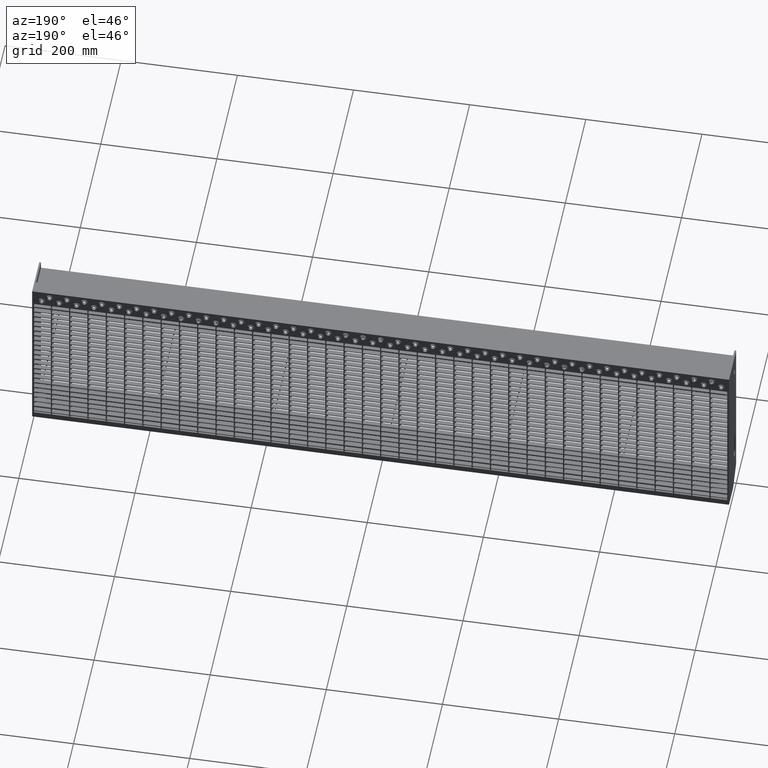
[diagram: clean part render]
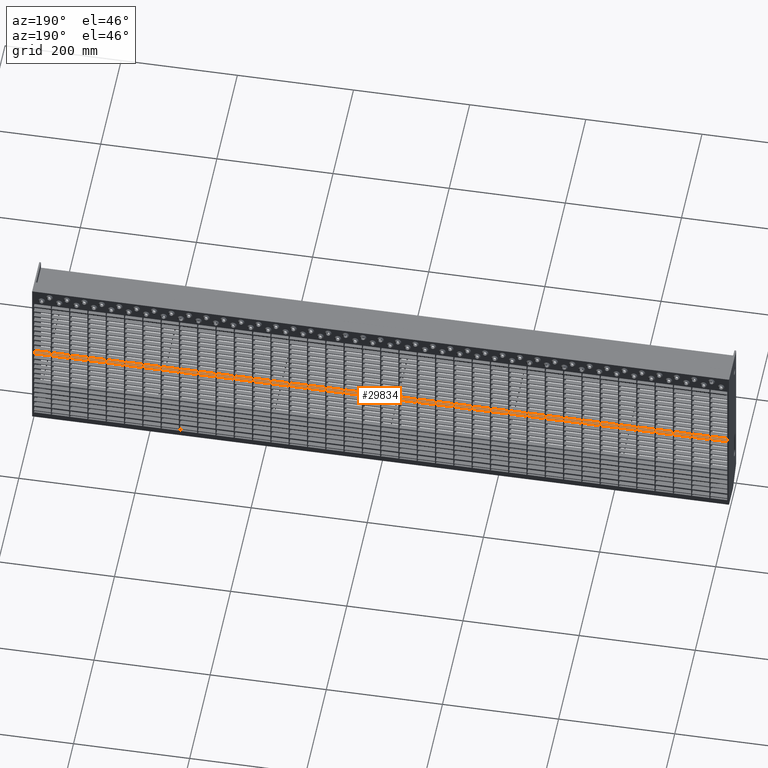
[diagram: same view with one face highlighted and labeled with its STEP entity id]
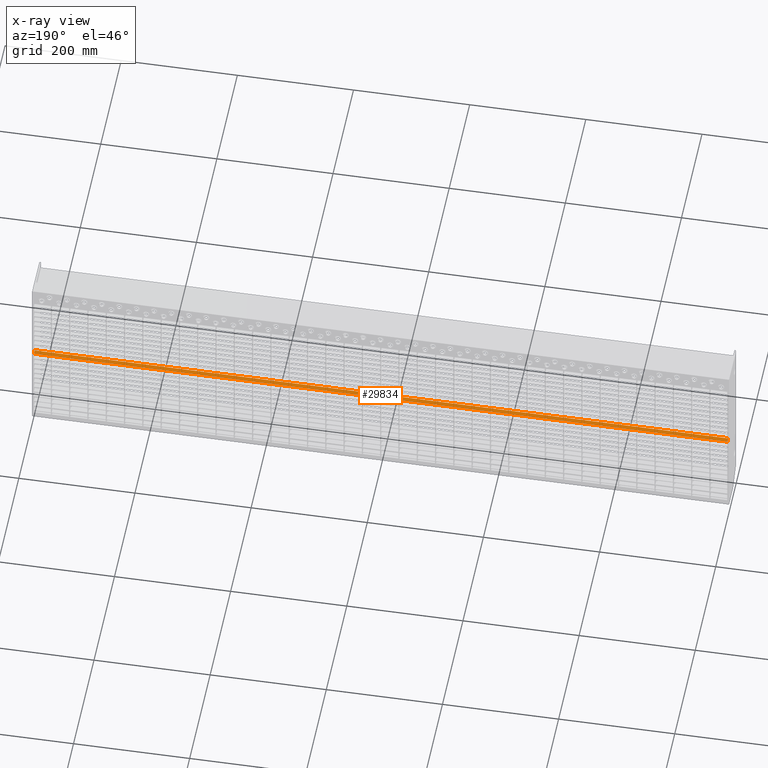
[diagram: x-ray of the same camera — body ghosted, the highlighted face saturated]
A machine part, auxiliary view. The second image highlights one B-rep face of the part: STEP entity #29834.
The next image is the same camera in x-ray: the body ghosted, the highlighted face saturated — about 0% of this face is hidden behind the body in this view.
In plain terms, the highlighted planar face has unit normal (0, 0, -1).
Its self-contained STEP definition (entity closure, byte-faithful):
#349 = CARTESIAN_POINT ( 'NONE',  ( -597.0000000000000000, 62.00000000000000700, -151.7499999999999700 ) ) ;
#2411 = VERTEX_POINT ( 'NONE', #39621 ) ;
#3162 = VECTOR ( 'NONE', #36793, 1000.000000000000000 ) ;
#3661 = ORIENTED_EDGE ( 'NONE', *, *, #10376, .F. ) ;
#5313 = LINE ( 'NONE', #31813, #35561 ) ;
#6898 = EDGE_CURVE ( 'NONE', #2411, #38054, #5313, .T. ) ;
#7973 = PLANE ( 'NONE',  #16260 ) ;
#8185 = CARTESIAN_POINT ( 'NONE',  ( -597.0000000000000000, 62.00000000000000700, -151.7499999999999700 ) ) ;
#8293 = ORIENTED_EDGE ( 'NONE', *, *, #6898, .T. ) ;
#8791 = VERTEX_POINT ( 'NONE', #8185 ) ;
#10376 = EDGE_CURVE ( 'NONE', #8791, #38566, #30016, .T. ) ;
#10623 = LINE ( 'NONE', #20095, #16849 ) ;
#11200 = CARTESIAN_POINT ( 'NONE',  ( 605.1394102980498200, 62.00000000000000700, -151.7499999999999700 ) ) ;
#14401 = DIRECTION ( 'NONE',  ( -1.000000000000000000, 0.0000000000000000000, -0.0000000000000000000 ) ) ;
#16260 = AXIS2_PLACEMENT_3D ( 'NONE', #11200, #39103, #14401 ) ;
#16849 = VECTOR ( 'NONE', #28986, 1000.000000000000000 ) ;
#17795 = ORIENTED_EDGE ( 'NONE', *, *, #28834, .F. ) ;
#19101 = ORIENTED_EDGE ( 'NONE', *, *, #22533, .T. ) ;
#20095 = CARTESIAN_POINT ( 'NONE',  ( 605.1394102980498200, 62.00000000000000700, -151.7499999999999700 ) ) ;
#22533 = EDGE_CURVE ( 'NONE', #38054, #38566, #37818, .T. ) ;
#27658 = CARTESIAN_POINT ( 'NONE',  ( 597.0000000000000000, 70.00000000000000000, -151.7499999999999700 ) ) ;
#28093 = CARTESIAN_POINT ( 'NONE',  ( -597.0000000000000000, 70.00000000000000000, -151.7499999999999700 ) ) ;
#28330 = FACE_OUTER_BOUND ( 'NONE', #33976, .T. ) ;
#28474 = DIRECTION ( 'NONE',  ( 0.0000000000000000000, 1.000000000000000000, 0.0000000000000000000 ) ) ;
#28834 = EDGE_CURVE ( 'NONE', #2411, #8791, #10623, .T. ) ;
#28986 = DIRECTION ( 'NONE',  ( -1.000000000000000000, -0.0000000000000000000, -0.0000000000000000000 ) ) ;
#29834 = ADVANCED_FACE ( 'NONE', ( #28330 ), #7973, .F. ) ;
#30016 = LINE ( 'NONE', #349, #3162 ) ;
#30558 = CARTESIAN_POINT ( 'NONE',  ( 605.1394102980498200, 70.00000000000000000, -151.7499999999999700 ) ) ;
#31813 = CARTESIAN_POINT ( 'NONE',  ( 597.0000000000000000, 62.00000000000000700, -151.7499999999999700 ) ) ;
#32060 = VECTOR ( 'NONE', #33756, 1000.000000000000000 ) ;
#33756 = DIRECTION ( 'NONE',  ( -1.000000000000000000, -0.0000000000000000000, -0.0000000000000000000 ) ) ;
#33976 = EDGE_LOOP ( 'NONE', ( #17795, #8293, #19101, #3661 ) ) ;
#35561 = VECTOR ( 'NONE', #28474, 1000.000000000000000 ) ;
#36793 = DIRECTION ( 'NONE',  ( 0.0000000000000000000, 1.000000000000000000, 0.0000000000000000000 ) ) ;
#37818 = LINE ( 'NONE', #30558, #32060 ) ;
#38054 = VERTEX_POINT ( 'NONE', #27658 ) ;
#38566 = VERTEX_POINT ( 'NONE', #28093 ) ;
#39103 = DIRECTION ( 'NONE',  ( 0.0000000000000000000, 0.0000000000000000000, -1.000000000000000000 ) ) ;
#39621 = CARTESIAN_POINT ( 'NONE',  ( 597.0000000000000000, 62.00000000000000700, -151.7499999999999700 ) ) ;